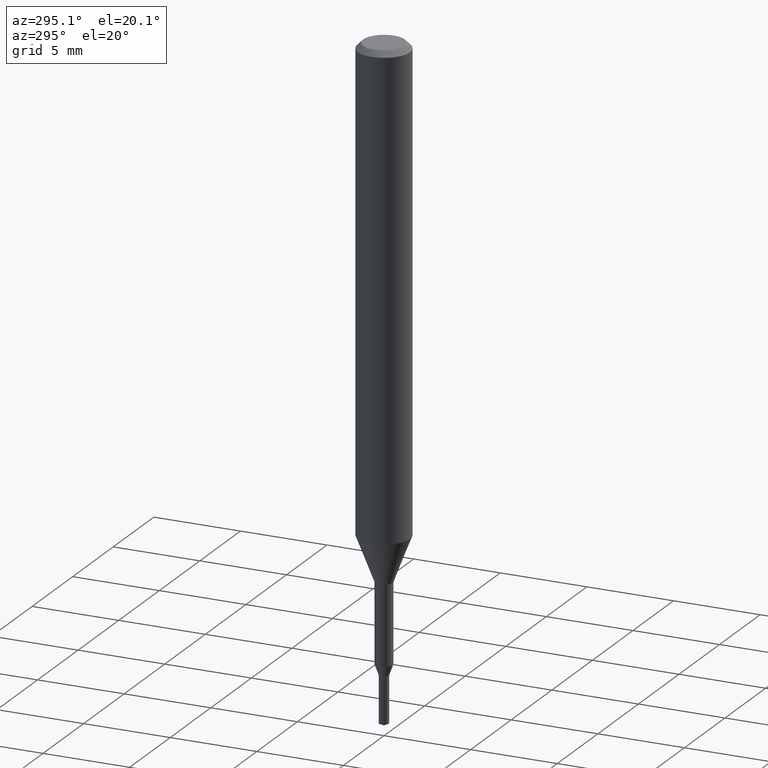
[diagram: clean part render]
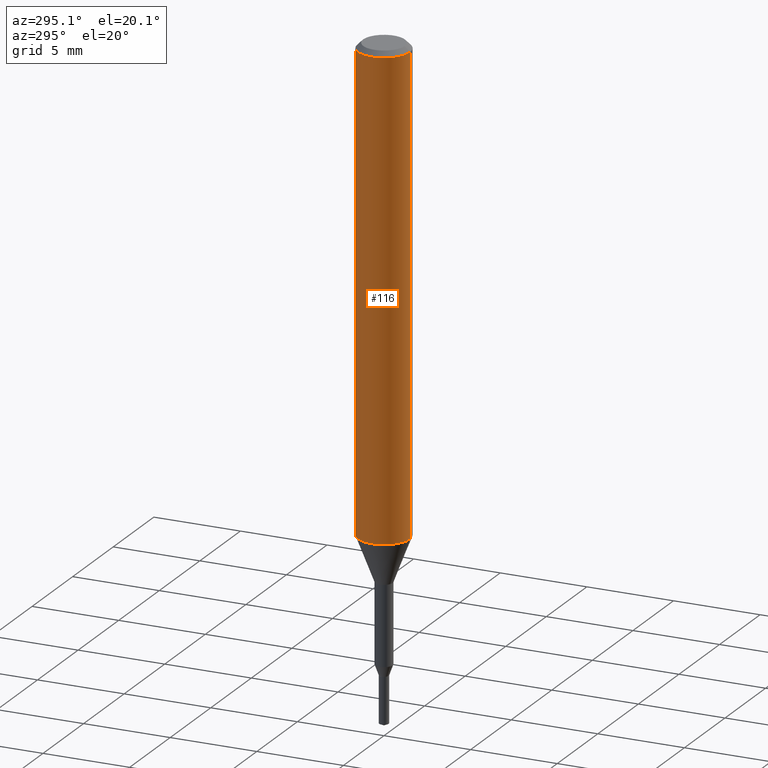
[diagram: same view with one face highlighted and labeled with its STEP entity id]
A machine part, auxiliary view. The second image highlights one B-rep face of the part: STEP entity #116.
In plain terms, the highlighted cylindrical surface (edge-blend (fillet) strip) has radius 1.5 mm, axis along (-0, -0, 1).
Its self-contained STEP definition (entity closure, byte-faithful):
#116=ADVANCED_FACE('',(#293),#294,.T.);
#122=VERTEX_POINT('',#300);
#134=VERTEX_POINT('',#312);
#168=EDGE_CURVE('',#176,#254,#353,.T.);
#176=VERTEX_POINT('',#363);
#194=EDGE_CURVE('',#134,#254,#382,.T.);
#218=EDGE_CURVE('',#176,#122,#408,.T.);
#226=EDGE_CURVE('',#122,#134,#417,.T.);
#254=VERTEX_POINT('',#449);
#293=FACE_OUTER_BOUND('',#483,.T.);
#294=CYLINDRICAL_SURFACE('',#484,1.5);
#300=CARTESIAN_POINT('',(1.83690953073357E-016,-1.5,-0.300000000000001));
#312=CARTESIAN_POINT('',(0.0,1.5,-0.300000000000001));
#353=CIRCLE('',#555,1.5);
#363=CARTESIAN_POINT('',(1.83690953073357E-016,-1.5,-27.395));
#382=LINE('',#592,#593);
#408=LINE('',#632,#633);
#417=CIRCLE('',#644,1.5);
#449=CARTESIAN_POINT('',(0.0,1.5,-27.395));
#483=EDGE_LOOP('',(#713,#714,#715,#716));
#484=AXIS2_PLACEMENT_3D('',#717,#718,#719);
#555=AXIS2_PLACEMENT_3D('',#786,#787,#788);
#592=CARTESIAN_POINT('',(-1.83690953073357E-016,1.5,-13.8475));
#593=VECTOR('',#822,1.0);
#632=CARTESIAN_POINT('',(1.83690953073357E-016,-1.5,-13.8475));
#633=VECTOR('',#860,1.0);
#644=AXIS2_PLACEMENT_3D('',#870,#871,#872);
#713=ORIENTED_EDGE('',*,*,#194,.T.);
#714=ORIENTED_EDGE('',*,*,#168,.F.);
#715=ORIENTED_EDGE('',*,*,#218,.T.);
#716=ORIENTED_EDGE('',*,*,#226,.T.);
#717=CARTESIAN_POINT('',(0.0,0.0,-13.8475));
#718=DIRECTION('',(-0.0,-0.0,1.0));
#719=DIRECTION('',(0.0,1.0,0.0));
#786=CARTESIAN_POINT('',(0.0,0.0,-27.395));
#787=DIRECTION('',(0.0,0.0,-1.0));
#788=DIRECTION('',(0.0,1.0,0.0));
#822=DIRECTION('',(0.0,0.0,-1.0));
#860=DIRECTION('',(-0.0,-0.0,1.0));
#870=CARTESIAN_POINT('',(0.0,0.0,-0.300000000000001));
#871=DIRECTION('',(0.0,0.0,-1.0));
#872=DIRECTION('',(0.0,1.0,0.0));